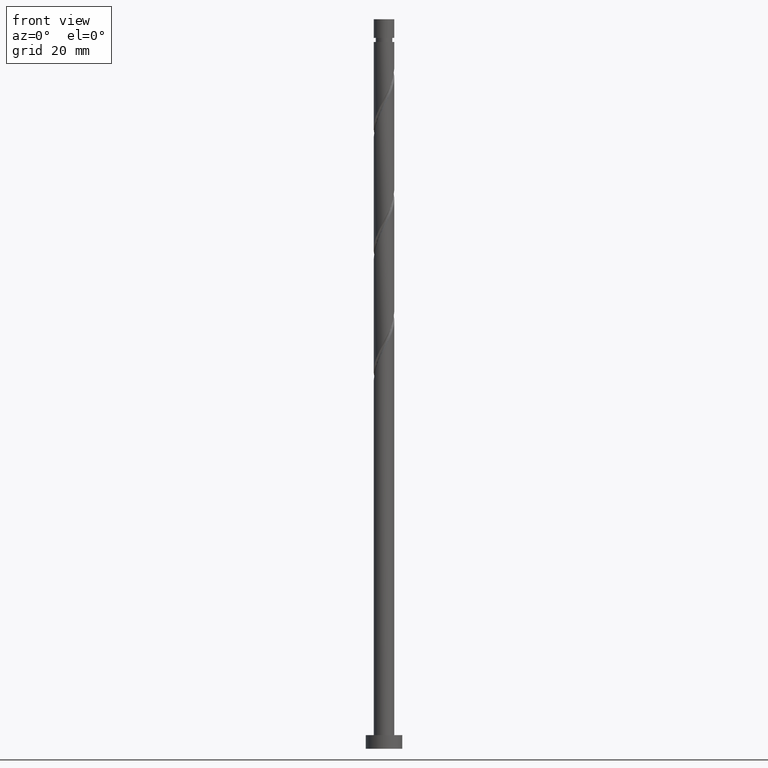
[diagram: clean part render]
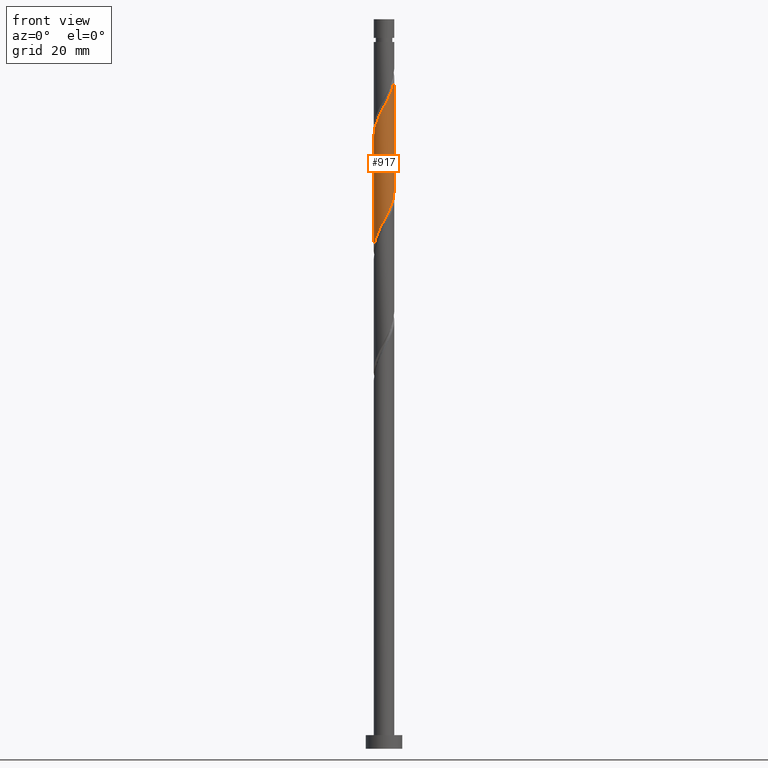
[diagram: same view with one face highlighted and labeled with its STEP entity id]
A machine part, front view. The second image highlights one B-rep face of the part: STEP entity #917.
In plain terms, the highlighted cylindrical surface (edge-blend (fillet) strip) has radius 2.25 mm, axis along (-0, -0, -1).
Its self-contained STEP definition (entity closure, byte-faithful):
#73 = CARTESIAN_POINT ( 'NONE',  ( -1.336880199978459194, -1.838451612741027974, 113.1913955430840986 ) ) ;
#76 = CARTESIAN_POINT ( 'NONE',  ( -2.246276943635560741, -0.1293827364500365895, 134.4035167552053451 ) ) ;
#84 = CARTESIAN_POINT ( 'NONE',  ( -2.250000000000003109, 4.472089390345386745E-15, 134.1601228819650373 ) ) ;
#101 = CARTESIAN_POINT ( 'NONE',  ( 2.191738273361778067, -0.5087075201735720142, 146.5247288764174698 ) ) ;
#111 = CARTESIAN_POINT ( 'NONE',  ( 2.250000000000003109, 1.720034380902071385E-15, 147.4934562152983801 ) ) ;
#122 = CARTESIAN_POINT ( 'NONE',  ( 0.8154464890247279385, -2.097032909502672737, 117.4338197855083621 ) ) ;
#130 = CARTESIAN_POINT ( 'NONE',  ( -0.1307132084390640325, -2.269375918314129770, 115.6156379673265207 ) ) ;
#132 = CARTESIAN_POINT ( 'NONE',  ( 1.800678831930457635, -1.387338727824646956, 144.7065470582355715 ) ) ;
#147 = CARTESIAN_POINT ( 'NONE',  ( -2.250000000000001776, -0.2576900866165186543, 109.6783251268714565 ) ) ;
#159 = CARTESIAN_POINT ( 'NONE',  ( 2.246276943635557188, -0.1293827364500373389, 122.2823046339932205 ) ) ;
#169 = VERTEX_POINT ( 'NONE', #518 ) ;
#186 = ORIENTED_EDGE ( 'NONE', *, *, #1364, .F. ) ;
#251 = CARTESIAN_POINT ( 'NONE',  ( 1.819738826151650279, -1.323272687164747996, 119.8580622097507842 ) ) ;
#327 = CARTESIAN_POINT ( 'NONE',  ( -2.250000000000002665, -0.06474493467860846507, 134.2822208866833193 ) ) ;
#331 = VECTOR ( 'NONE', #1223, 1000.000000000000000 ) ;
#348 = CARTESIAN_POINT ( 'NONE',  ( 0.7647754849568961788, -2.140624081685874369, 142.2823046339931636 ) ) ;
#387 = CARTESIAN_POINT ( 'NONE',  ( 2.227674514516368554, -0.4523486032462003537, 121.6762440279325688 ) ) ;
#402 = CARTESIAN_POINT ( 'NONE',  ( -2.249999999999999556, 8.742261701193629257E-15, 109.1923651739001286 ) ) ;
#419 = EDGE_CURVE ( 'NONE', #459, #1277, #1042, .T. ) ;
#427 = CARTESIAN_POINT ( 'NONE',  ( -1.050827842467677353, -1.989537847213448618, 113.7974561491447361 ) ) ;
#434 = VECTOR ( 'NONE', #1430, 1000.000000000000000 ) ;
#445 = CARTESIAN_POINT ( 'NONE',  ( -1.959638002949630753, -1.105585318912829518, 111.3732137249022713 ) ) ;
#459 = VERTEX_POINT ( 'NONE', #1640 ) ;
#469 = CARTESIAN_POINT ( 'NONE',  ( 0.1307132084390632276, -2.269375918314132434, 141.0701834218719739 ) ) ;
#496 = CARTESIAN_POINT ( 'NONE',  ( 2.118835615059355693, -0.7569911732352242462, 121.0701834218719739 ) ) ;
#514 = LINE ( 'NONE', #681, #434 ) ;
#518 = CARTESIAN_POINT ( 'NONE',  ( -2.249999999999999556, 8.742261701193629257E-15, 109.1923651739001286 ) ) ;
#523 = CARTESIAN_POINT ( 'NONE',  ( -1.800678831930455415, -1.387338727824644069, 111.9792743309628662 ) ) ;
#542 = DIRECTION ( 'NONE',  ( -0.000000000000000000, -0.000000000000000000, -1.000000000000000000 ) ) ;
#588 = CARTESIAN_POINT ( 'NONE',  ( -2.227674514516372550, -0.4523486032462000761, 135.0095773612659116 ) ) ;
#598 = CARTESIAN_POINT ( 'NONE',  ( -0.5139386748451193476, -2.214276414538841831, 139.8580622097507842 ) ) ;
#604 = CARTESIAN_POINT ( 'NONE',  ( -2.118835615059359689, -0.7569911732352245792, 135.6156379673265064 ) ) ;
#611 = CARTESIAN_POINT ( 'NONE',  ( 2.118597173968809422, -0.8238319100010167428, 145.9186682703567897 ) ) ;
#647 = CARTESIAN_POINT ( 'NONE',  ( -0.4477443466979799114, -2.204999999999999183, 115.0095773612658974 ) ) ;
#651 = ORIENTED_EDGE ( 'NONE', *, *, #1462, .T. ) ;
#681 = CARTESIAN_POINT ( 'NONE',  ( 2.250000000000000000, 2.755455298081544285E-16, 160.0000000000000000 ) ) ;
#691 = EDGE_LOOP ( 'NONE', ( #1651, #938, #651, #186 ) ) ;
#705 = VERTEX_POINT ( 'NONE', #733 ) ;
#733 = CARTESIAN_POINT ( 'NONE',  ( 2.250000000000000000, 3.380241478990181135E-15, 122.5256985072334999 ) ) ;
#738 = CARTESIAN_POINT ( 'NONE',  ( 1.050827842467678241, -1.989537847213453059, 142.8883652400538153 ) ) ;
#765 = CARTESIAN_POINT ( 'NONE',  ( 1.629480936700959948, -1.584911631105247576, 119.2520016036901325 ) ) ;
#781 = FACE_OUTER_BOUND ( 'NONE', #691, .T. ) ;
#834 = CARTESIAN_POINT ( 'NONE',  ( -1.629480936700961724, -1.584911631105249796, 137.4338197855083195 ) ) ;
#886 = CARTESIAN_POINT ( 'NONE',  ( 0.5139386748451186815, -2.214276414538838278, 116.8277591794477246 ) ) ;
#895 = CARTESIAN_POINT ( 'NONE',  ( 0.1916127332030267694, -2.241826166426483358, 116.2216985733871297 ) ) ;
#917 = ADVANCED_FACE ( 'NONE', ( #781 ), #1282, .T. ) ;
#938 = ORIENTED_EDGE ( 'NONE', *, *, #419, .F. ) ;
#949 = CARTESIAN_POINT ( 'NONE',  ( -2.191738273361774958, -0.5087075201735706820, 110.1610925127810674 ) ) ;
#952 = LINE ( 'NONE', #1448, #331 ) ;
#960 = AXIS2_PLACEMENT_3D ( 'NONE', #1401, #542, #1050 ) ;
#968 = CARTESIAN_POINT ( 'NONE',  ( -1.373217619952650459, -1.782350517785879607, 138.0398803915689143 ) ) ;
#978 = CARTESIAN_POINT ( 'NONE',  ( 1.336880199978460970, -1.838451612741030861, 143.4944258461144102 ) ) ;
#980 = EDGE_CURVE ( 'NONE', #1277, #705, #514, .T. ) ;
#1013 = CARTESIAN_POINT ( 'NONE',  ( 2.009996715602341943, -1.061633743224248194, 120.4641228158113506 ) ) ;
#1042 =( BOUNDED_CURVE ( )  B_SPLINE_CURVE ( 2, ( #84, #327, #76, #588, #604, #1093, #1611, #834, #968, #1479, #1218, #598, #1097, #469, #1486, #348, #738, #978, #1256, #132, #1318, #611, #101, #1110, #111 ),
 .UNSPECIFIED., .F., .T. ) 
 B_SPLINE_CURVE_WITH_KNOTS ( ( 3, 2, 2, 2, 2, 2, 2, 2, 2, 2, 2, 2, 3 ),
 ( 0.5545252162417516617, 0.5568181818181818787, 0.5681818181818181213, 0.5795454545454545858, 0.5909090909090908283, 0.6022727272727272929, 0.6136363636363636465, 0.6250000000000000000, 0.6363636363636363535, 0.6477272727272727071, 0.6590909090909091717, 0.6704545454545454142, 0.6795252162417512176 ),
 .UNSPECIFIED. ) 
 CURVE ( )  GEOMETRIC_REPRESENTATION_ITEM ( )  RATIONAL_B_SPLINE_CURVE ( ( 0.9061101570135692285, 0.9072237824201513368, 0.9090909090909286006, 0.8998376744372309499, 0.9090909090909286006, 0.8998376744372309499, 0.9090909090909286006, 0.8998376744372309499, 0.9090909090909286006, 0.8998376744372309499, 0.9090909090909286006, 0.8998376744372309499, 0.9090909090909286006, 0.8998376744372309499, 0.9090909090909286006, 0.8998376744372309499, 0.9090909090909286006, 0.8998376744372309499, 0.9090909090909286006, 0.8998376744372309499, 0.9090909090909286006, 0.8998376744372309499, 0.9090909090909286006, 0.9017048011080085468, 0.9061101570135687844 ) ) 
 REPRESENTATION_ITEM ( '' )  );
#1050 = DIRECTION ( 'NONE',  ( -1.000000000000000000, 0.000000000000000000, 0.000000000000000000 ) ) ;
#1052 = CARTESIAN_POINT ( 'NONE',  ( -2.118597173968805425, -0.8238319100010154106, 110.7671531188416765 ) ) ;
#1093 = CARTESIAN_POINT ( 'NONE',  ( -2.009996715602345052, -1.061633743224249971, 136.2216985733871581 ) ) ;
#1097 = CARTESIAN_POINT ( 'NONE',  ( -0.1916127332030280739, -2.241826166426486910, 140.4641228158113790 ) ) ;
#1110 = CARTESIAN_POINT ( 'NONE',  ( 2.250000000000002220, -0.2576900866165313109, 147.0074962623270096 ) ) ;
#1218 = CARTESIAN_POINT ( 'NONE',  ( -0.8154464890247302700, -2.097032909502675402, 139.2520016036901325 ) ) ;
#1223 = DIRECTION ( 'NONE',  ( -0.000000000000000000, -0.000000000000000000, -1.000000000000000000 ) ) ;
#1256 = CARTESIAN_POINT ( 'NONE',  ( 1.568779515954459081, -1.612895170282839130, 144.1004864521750051 ) ) ;
#1265 = CARTESIAN_POINT ( 'NONE',  ( 1.373217619952648016, -1.782350517785877164, 118.6459409976295518 ) ) ;
#1270 =( BOUNDED_CURVE ( )  B_SPLINE_CURVE ( 2, ( #1391, #1289, #159, #387, #496, #1013, #251, #765, #1265, #1276, #122, #886, #895, #130, #647, #1532, #427, #73, #1317, #523, #445, #1052, #949, #147, #402 ),
 .UNSPECIFIED., .F., .T. ) 
 B_SPLINE_CURVE_WITH_KNOTS ( ( 3, 2, 2, 2, 2, 2, 2, 2, 2, 2, 2, 2, 3 ),
 ( 0.5545252162417511066, 0.5568181818181817677, 0.5681818181818182323, 0.5795454545454545858, 0.5909090909090909394, 0.6022727272727272929, 0.6136363636363636465, 0.6250000000000000000, 0.6363636363636363535, 0.6477272727272727071, 0.6590909090909090606, 0.6704545454545454142, 0.6795252162417515507 ),
 .UNSPECIFIED. ) 
 CURVE ( )  GEOMETRIC_REPRESENTATION_ITEM ( )  RATIONAL_B_SPLINE_CURVE ( ( 0.9061101570135627892, 0.9072237824201448975, 0.9090909090909224943, 0.8998376744372248437, 0.9090909090909224943, 0.8998376744372248437, 0.9090909090909224943, 0.8998376744372248437, 0.9090909090909224943, 0.8998376744372248437, 0.9090909090909224943, 0.8998376744372248437, 0.9090909090909224943, 0.8998376744372248437, 0.9090909090909224943, 0.8998376744372248437, 0.9090909090909224943, 0.8998376744372248437, 0.9090909090909224943, 0.8998376744372248437, 0.9090909090909224943, 0.8998376744372248437, 0.9090909090909224943, 0.9017048011080021075, 0.9061101570135630112 ) ) 
 REPRESENTATION_ITEM ( '' )  );
#1276 = CARTESIAN_POINT ( 'NONE',  ( 1.116954303204337640, -1.979789404466506308, 118.0398803915689285 ) ) ;
#1277 = VERTEX_POINT ( 'NONE', #1435 ) ;
#1282 = CYLINDRICAL_SURFACE ( 'NONE', #960, 2.250000000000000000 ) ;
#1289 = CARTESIAN_POINT ( 'NONE',  ( 2.250000000000000000, -0.06474493467859616935, 122.4036005025152605 ) ) ;
#1317 = CARTESIAN_POINT ( 'NONE',  ( -1.568779515954457970, -1.612895170282835799, 112.5853349370234895 ) ) ;
#1318 = CARTESIAN_POINT ( 'NONE',  ( 1.959638002949632751, -1.105585318912832182, 145.3126076642962516 ) ) ;
#1364 = EDGE_CURVE ( 'NONE', #705, #169, #1270, .T. ) ;
#1391 = CARTESIAN_POINT ( 'NONE',  ( 2.250000000000000000, 3.380241478990181135E-15, 122.5256985072334999 ) ) ;
#1401 = CARTESIAN_POINT ( 'NONE',  ( 0.000000000000000000, 0.000000000000000000, 160.0000000000000000 ) ) ;
#1430 = DIRECTION ( 'NONE',  ( -0.000000000000000000, -0.000000000000000000, -1.000000000000000000 ) ) ;
#1435 = CARTESIAN_POINT ( 'NONE',  ( 2.250000000000003109, 1.720034380902071385E-15, 147.4934562152983801 ) ) ;
#1448 = CARTESIAN_POINT ( 'NONE',  ( -2.250000000000000000, 0.000000000000000000, 160.0000000000000000 ) ) ;
#1462 = EDGE_CURVE ( 'NONE', #459, #169, #952, .T. ) ;
#1479 = CARTESIAN_POINT ( 'NONE',  ( -1.116954303204340082, -1.979789404466508973, 138.6459409976295376 ) ) ;
#1486 = CARTESIAN_POINT ( 'NONE',  ( 0.4477443466979796338, -2.205000000000003180, 141.6762440279325972 ) ) ;
#1532 = CARTESIAN_POINT ( 'NONE',  ( -0.7647754849568959568, -2.140624081685869928, 114.4035167552053167 ) ) ;
#1611 = CARTESIAN_POINT ( 'NONE',  ( -1.819738826151653388, -1.323272687164749772, 136.8277591794477530 ) ) ;
#1640 = CARTESIAN_POINT ( 'NONE',  ( -2.250000000000003553, 4.472089390345385957E-15, 134.1601228819650373 ) ) ;
#1651 = ORIENTED_EDGE ( 'NONE', *, *, #980, .F. ) ;